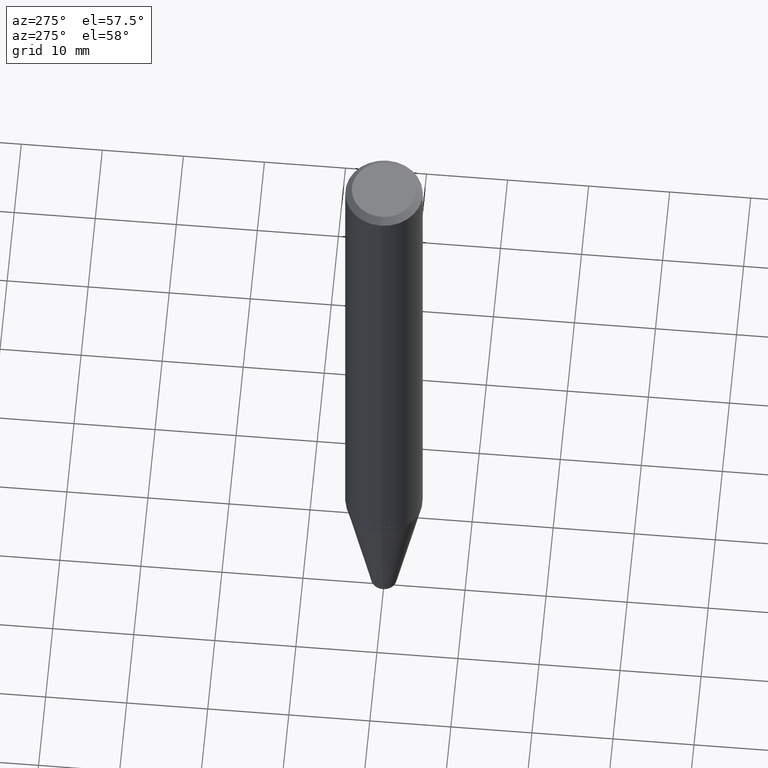
[diagram: clean part render]
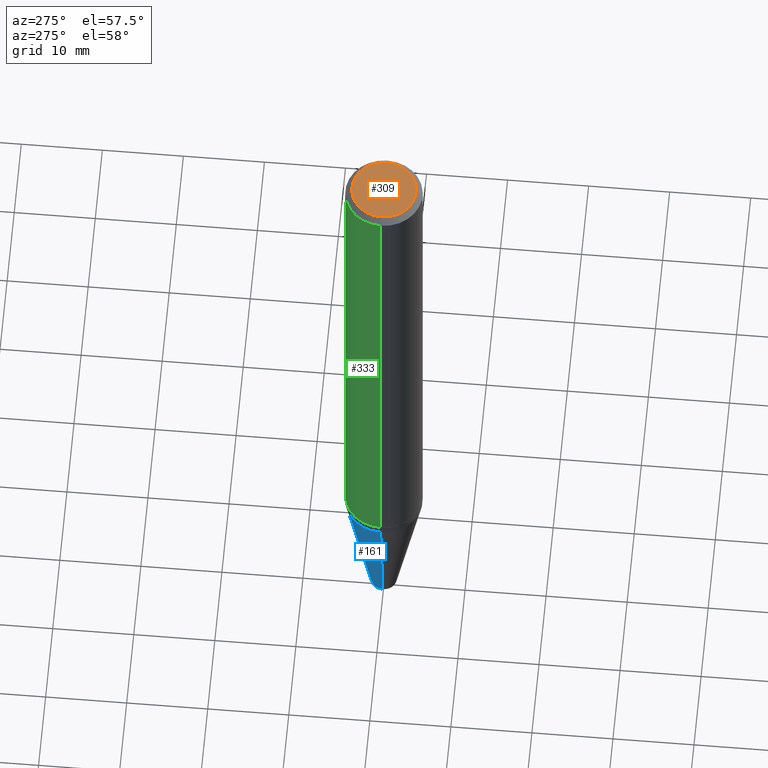
[diagram: same view with three faces highlighted in distinct colors, each labeled with its STEP entity id]
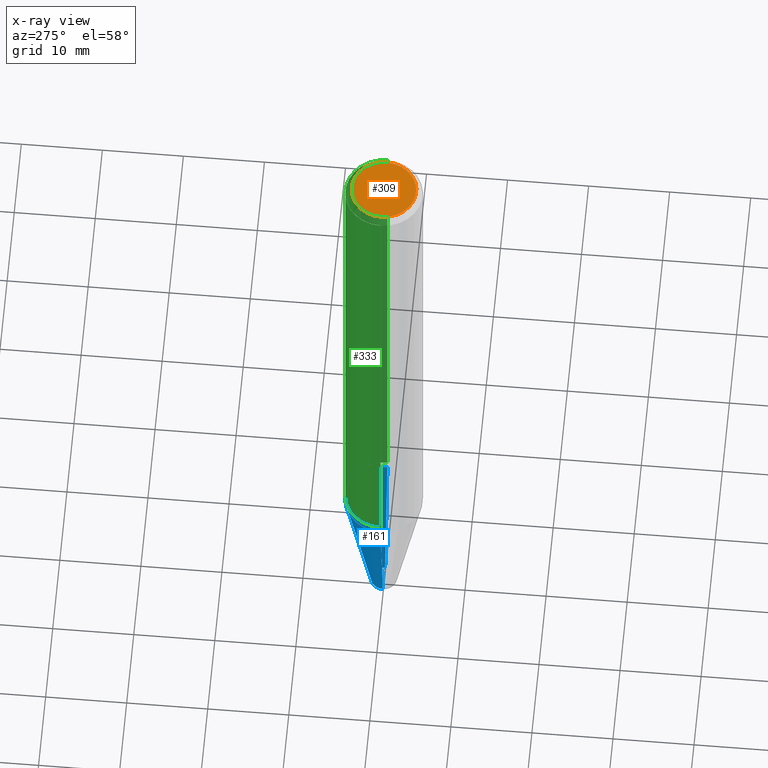
[diagram: x-ray of the same camera — body ghosted, the three highlighted faces saturated]
A machine part, auxiliary view with three faces highlighted in distinct colors.
The next image is the same camera in x-ray (body ghosted, the three faces saturated) — at least one of them is partly hidden behind the body in this view.
Their STEP definitions:

[orange] entity #309 — the highlighted planar face has unit normal (0, -0, -1).
#55 = CARTESIAN_POINT ( 'NONE',  ( 0.1562500000000000833, -1.233702489286406538E-15, 8.128494228692102296E-30 ) ) ;
#65 = DIRECTION ( 'NONE',  ( 1.000000000000000000, -6.982962677686266711E-15, 4.876176775795935232E-29 ) ) ;
#71 = AXIS2_PLACEMENT_3D ( 'NONE', #314, #378, #125 ) ;
#102 = AXIS2_PLACEMENT_3D ( 'NONE', #208, #337, #65 ) ;
#114 = CIRCLE ( 'NONE', #102, 0.1562500000000000833 ) ;
#125 = DIRECTION ( 'NONE',  ( -1.000000000000000000, 6.982962677686265922E-15, -4.876176775795935793E-29 ) ) ;
#154 = DIRECTION ( 'NONE',  ( 1.000000000000000000, -6.982962677686266711E-15, 4.876176775795935232E-29 ) ) ;
#159 = EDGE_LOOP ( 'NONE', ( #232, #409 ) ) ;
#183 = VERTEX_POINT ( 'NONE', #279 ) ;
#188 = FACE_OUTER_BOUND ( 'NONE', #159, .T. ) ;
#208 = CARTESIAN_POINT ( 'NONE',  ( 0.000000000000000000, 0.000000000000000000, 0.000000000000000000 ) ) ;
#218 = PLANE ( 'NONE',  #71 ) ;
#232 = ORIENTED_EDGE ( 'NONE', *, *, #248, .T. ) ;
#248 = EDGE_CURVE ( 'NONE', #183, #251, #305, .T. ) ;
#251 = VERTEX_POINT ( 'NONE', #55 ) ;
#279 = CARTESIAN_POINT ( 'NONE',  ( -0.1562500000000000833, 1.145642314307903329E-15, -7.821033771059395014E-30 ) ) ;
#292 = AXIS2_PLACEMENT_3D ( 'NONE', #310, #338, #154 ) ;
#305 = CIRCLE ( 'NONE', #292, 0.1562500000000000833 ) ;
#309 = ADVANCED_FACE ( 'NONE', ( #188 ), #218, .F. ) ;
#310 = CARTESIAN_POINT ( 'NONE',  ( 0.000000000000000000, 0.000000000000000000, 0.000000000000000000 ) ) ;
#314 = CARTESIAN_POINT ( 'NONE',  ( 0.000000000000000000, 0.000000000000000000, 0.000000000000000000 ) ) ;
#337 = DIRECTION ( 'NONE',  ( -2.445468806185136597E-29, 3.491481338843145583E-15, 1.000000000000000000 ) ) ;
#338 = DIRECTION ( 'NONE',  ( -2.445468806185136597E-29, 3.491481338843145583E-15, 1.000000000000000000 ) ) ;
#340 = EDGE_CURVE ( 'NONE', #251, #183, #114, .T. ) ;
#378 = DIRECTION ( 'NONE',  ( 2.438088387897960049E-29, -3.491481338843145188E-15, -1.000000000000000000 ) ) ;
#409 = ORIENTED_EDGE ( 'NONE', *, *, #340, .T. ) ;

[blue] entity #161 — the highlighted conical surface has half-angle 10 deg.
#3 = ORIENTED_EDGE ( 'NONE', *, *, #171, .F. ) ;
#25 = CONICAL_SURFACE ( 'NONE', #201, 0.06250000000000005551, 0.1745329251994259256 ) ;
#51 = LINE ( 'NONE', #123, #328 ) ;
#54 = EDGE_CURVE ( 'NONE', #236, #332, #225, .T. ) ;
#72 = ORIENTED_EDGE ( 'NONE', *, *, #54, .F. ) ;
#95 = AXIS2_PLACEMENT_3D ( 'NONE', #304, #368, #206 ) ;
#112 = CARTESIAN_POINT ( 'NONE',  ( 0.06250000000000005551, -1.265661985330639943E-14, -3.500000000000000000 ) ) ;
#123 = CARTESIAN_POINT ( 'NONE',  ( -0.06250000000000005551, -1.177609547610094673E-14, -3.500000000000000000 ) ) ;
#138 = VERTEX_POINT ( 'NONE', #354 ) ;
#144 = DIRECTION ( 'NONE',  ( -2.445468806185136597E-29, 3.491481338843145583E-15, 1.000000000000000000 ) ) ;
#160 = VECTOR ( 'NONE', #238, 39.37007874015748143 ) ;
#161 = ADVANCED_FACE ( 'NONE', ( #267 ), #25, .T. ) ;
#169 = LINE ( 'NONE', #112, #160 ) ;
#171 = EDGE_CURVE ( 'NONE', #138, #236, #169, .T. ) ;
#172 = ORIENTED_EDGE ( 'NONE', *, *, #359, .T. ) ;
#177 = EDGE_LOOP ( 'NONE', ( #172, #356, #72, #3 ) ) ;
#190 = CARTESIAN_POINT ( 'NONE',  ( -0.06250000000000005551, -1.009443285121860521E-14, -3.500000000000000000 ) ) ;
#200 = DIRECTION ( 'NONE',  ( 1.000000000000000000, -6.982962677686261189E-15, 0.000000000000000000 ) ) ;
#201 = AXIS2_PLACEMENT_3D ( 'NONE', #393, #144, #204 ) ;
#203 = DIRECTION ( 'NONE',  ( -2.445468806185136597E-29, 3.491481338843145583E-15, 1.000000000000000000 ) ) ;
#204 = DIRECTION ( 'NONE',  ( 1.000000000000000000, -6.982962677686256455E-15, 0.000000000000000000 ) ) ;
#206 = DIRECTION ( 'NONE',  ( 1.000000000000000000, -6.982962677686256455E-15, 0.000000000000000000 ) ) ;
#214 = EDGE_CURVE ( 'NONE', #321, #332, #51, .T. ) ;
#225 = CIRCLE ( 'NONE', #235, 0.1875000000000000278 ) ;
#235 = AXIS2_PLACEMENT_3D ( 'NONE', #360, #203, #200 ) ;
#236 = VERTEX_POINT ( 'NONE', #404 ) ;
#238 = DIRECTION ( 'NONE',  ( 0.1736481776669234200, 2.225859148293818106E-15, 0.9848077530122092416 ) ) ;
#252 = CARTESIAN_POINT ( 'NONE',  ( -0.1875000000000000278, -8.412770226336266860E-15, -2.791089772547757253 ) ) ;
#267 = FACE_OUTER_BOUND ( 'NONE', #177, .T. ) ;
#304 = CARTESIAN_POINT ( 'NONE',  ( 8.559140821647976968E-29, -1.222018468595100934E-14, -3.500000000000000000 ) ) ;
#321 = VERTEX_POINT ( 'NONE', #190 ) ;
#328 = VECTOR ( 'NONE', #365, 39.37007874015748143 ) ;
#332 = VERTEX_POINT ( 'NONE', #252 ) ;
#354 = CARTESIAN_POINT ( 'NONE',  ( 0.06250000000000005551, -1.265661985330639943E-14, -3.500000000000000000 ) ) ;
#356 = ORIENTED_EDGE ( 'NONE', *, *, #214, .T. ) ;
#359 = EDGE_CURVE ( 'NONE', #138, #321, #385, .T. ) ;
#360 = CARTESIAN_POINT ( 'NONE',  ( 6.825522974027907843E-29, -9.745037855886453130E-15, -2.791089772547757253 ) ) ;
#365 = DIRECTION ( 'NONE',  ( -0.1736481776669234200, 4.672282404182295014E-15, 0.9848077530122092416 ) ) ;
#368 = DIRECTION ( 'NONE',  ( -2.445468806185136597E-29, 3.491481338843145583E-15, 1.000000000000000000 ) ) ;
#385 = CIRCLE ( 'NONE', #95, 0.06250000000000005551 ) ;
#393 = CARTESIAN_POINT ( 'NONE',  ( 8.559140821647976968E-29, -1.222018468595100934E-14, -3.500000000000000000 ) ) ;
#404 = CARTESIAN_POINT ( 'NONE',  ( 0.1875000000000000278, -1.105434335795262656E-14, -2.791089772547757253 ) ) ;

[green] entity #333 — the highlighted cylindrical surface (partial cylindrical patch) has radius 4.7625 mm, axis along (-0, 0, 1).
#1 = DIRECTION ( 'NONE',  ( 1.000000000000000000, -6.982962677686265922E-15, 0.000000000000000000 ) ) ;
#19 = CYLINDRICAL_SURFACE ( 'NONE', #229, 0.1875000000000001943 ) ;
#22 = EDGE_CURVE ( 'NONE', #316, #415, #394, .T. ) ;
#35 = DIRECTION ( 'NONE',  ( -2.445468806185136597E-29, 3.491481338843145583E-15, 1.000000000000000000 ) ) ;
#36 = CIRCLE ( 'NONE', #335, 0.1875000000000000278 ) ;
#42 = DIRECTION ( 'NONE',  ( 1.000000000000000000, -6.982962677686269077E-15, 0.000000000000000000 ) ) ;
#64 = AXIS2_PLACEMENT_3D ( 'NONE', #357, #74, #42 ) ;
#74 = DIRECTION ( 'NONE',  ( -2.445468806185136597E-29, 3.491481338843145583E-15, 1.000000000000000000 ) ) ;
#75 = VECTOR ( 'NONE', #273, 39.37007874015748143 ) ;
#82 = CARTESIAN_POINT ( 'NONE',  ( 0.000000000000000000, 0.000000000000000000, 0.000000000000000000 ) ) ;
#89 = CARTESIAN_POINT ( 'NONE',  ( 0.1875000000000003886, -1.090913344321540415E-14, -2.749499999999999833 ) ) ;
#110 = LINE ( 'NONE', #383, #139 ) ;
#124 = EDGE_CURVE ( 'NONE', #349, #319, #36, .T. ) ;
#139 = VECTOR ( 'NONE', #363, 39.37007874015748143 ) ;
#140 = CARTESIAN_POINT ( 'NONE',  ( 7.642090019328561499E-31, -1.091087918388484350E-16, -0.03125000000000003469 ) ) ;
#170 = EDGE_CURVE ( 'NONE', #415, #319, #110, .T. ) ;
#186 = ORIENTED_EDGE ( 'NONE', *, *, #202, .F. ) ;
#202 = EDGE_CURVE ( 'NONE', #316, #349, #344, .T. ) ;
#213 = CARTESIAN_POINT ( 'NONE',  ( 0.1875000000000000278, -1.418414293905023320E-15, -0.03125000000000003469 ) ) ;
#216 = FACE_OUTER_BOUND ( 'NONE', #330, .T. ) ;
#229 = AXIS2_PLACEMENT_3D ( 'NONE', #82, #281, #410 ) ;
#241 = CARTESIAN_POINT ( 'NONE',  ( -0.1875000000000000278, -3.522200736943847330E-15, -0.03125000000000003469 ) ) ;
#257 = ORIENTED_EDGE ( 'NONE', *, *, #124, .F. ) ;
#270 = ORIENTED_EDGE ( 'NONE', *, *, #22, .T. ) ;
#273 = DIRECTION ( 'NONE',  ( -2.445468806185136877E-29, 3.491481338843145188E-15, 1.000000000000000000 ) ) ;
#274 = CARTESIAN_POINT ( 'NONE',  ( -0.1875000000000003886, -8.267560311599038141E-15, -2.749499999999999833 ) ) ;
#281 = DIRECTION ( 'NONE',  ( -2.445468806185136597E-29, 3.491481338843145583E-15, 1.000000000000000000 ) ) ;
#283 = ORIENTED_EDGE ( 'NONE', *, *, #170, .T. ) ;
#316 = VERTEX_POINT ( 'NONE', #89 ) ;
#319 = VERTEX_POINT ( 'NONE', #241 ) ;
#330 = EDGE_LOOP ( 'NONE', ( #270, #283, #257, #186 ) ) ;
#333 = ADVANCED_FACE ( 'NONE', ( #216 ), #19, .T. ) ;
#335 = AXIS2_PLACEMENT_3D ( 'NONE', #140, #35, #1 ) ;
#344 = LINE ( 'NONE', #407, #75 ) ;
#349 = VERTEX_POINT ( 'NONE', #213 ) ;
#357 = CARTESIAN_POINT ( 'NONE',  ( 6.723816482606031719E-29, -9.599827941149227567E-15, -2.749499999999999833 ) ) ;
#363 = DIRECTION ( 'NONE',  ( -2.445468806185136877E-29, 3.491481338843145188E-15, 1.000000000000000000 ) ) ;
#383 = CARTESIAN_POINT ( 'NONE',  ( -0.1875000000000001943, 1.332267629550189229E-15, -9.223003294227957800E-30 ) ) ;
#394 = CIRCLE ( 'NONE', #64, 0.1875000000000003886 ) ;
#407 = CARTESIAN_POINT ( 'NONE',  ( 0.1875000000000001943, -1.309305502066176192E-15, 9.142831454617389421E-30 ) ) ;
#410 = DIRECTION ( 'NONE',  ( 1.000000000000000000, -6.982962677686265922E-15, 4.876176775795935793E-29 ) ) ;
#415 = VERTEX_POINT ( 'NONE', #274 ) ;